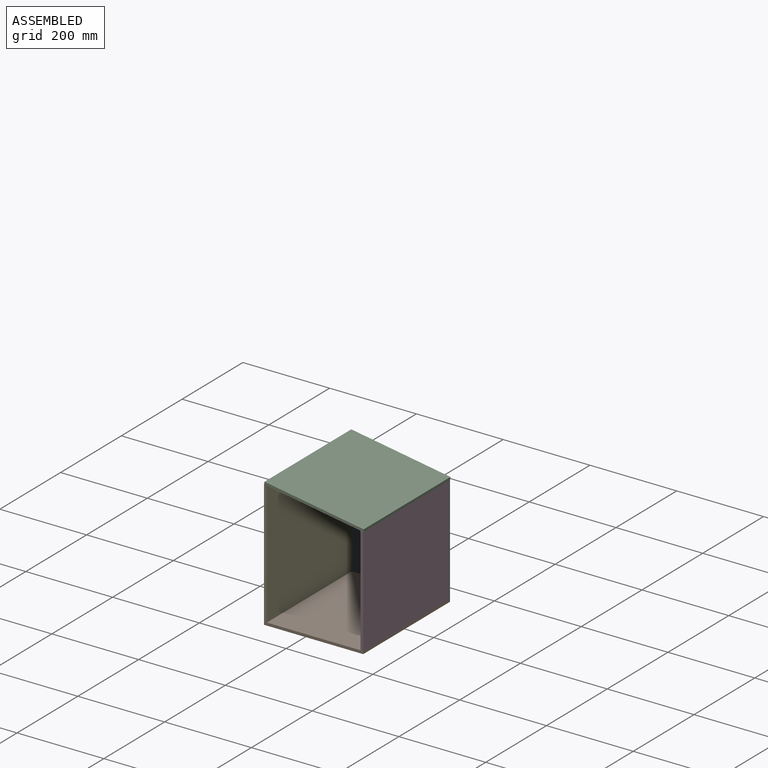
[diagram: assembled view]
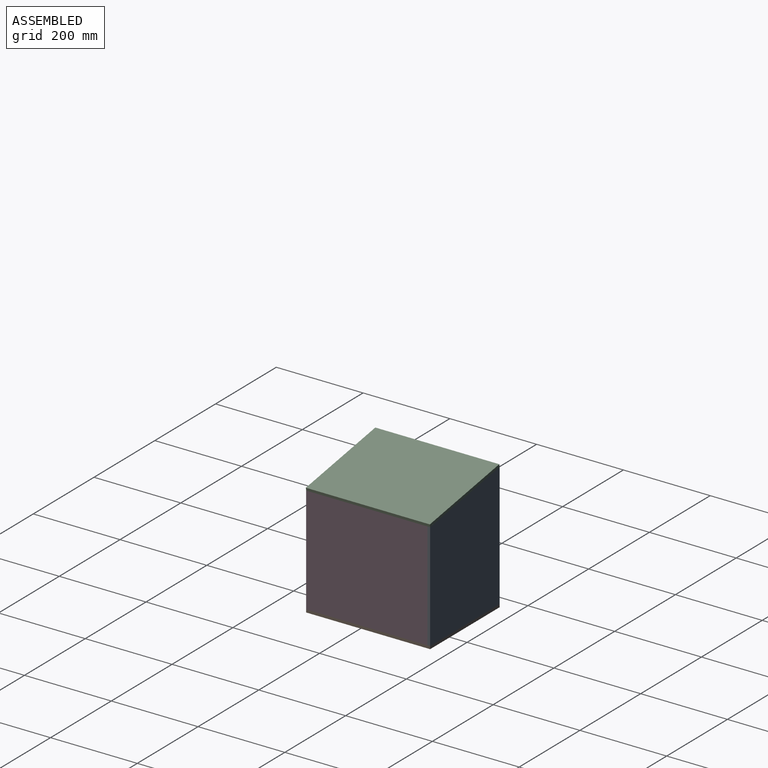
[diagram: assembled view, second angle]
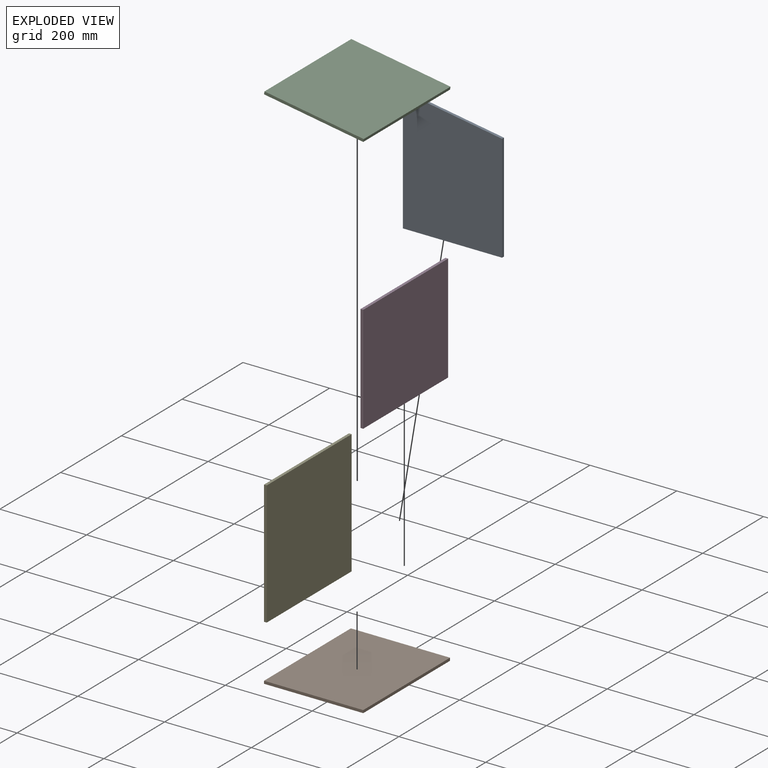
[diagram: exploded view]
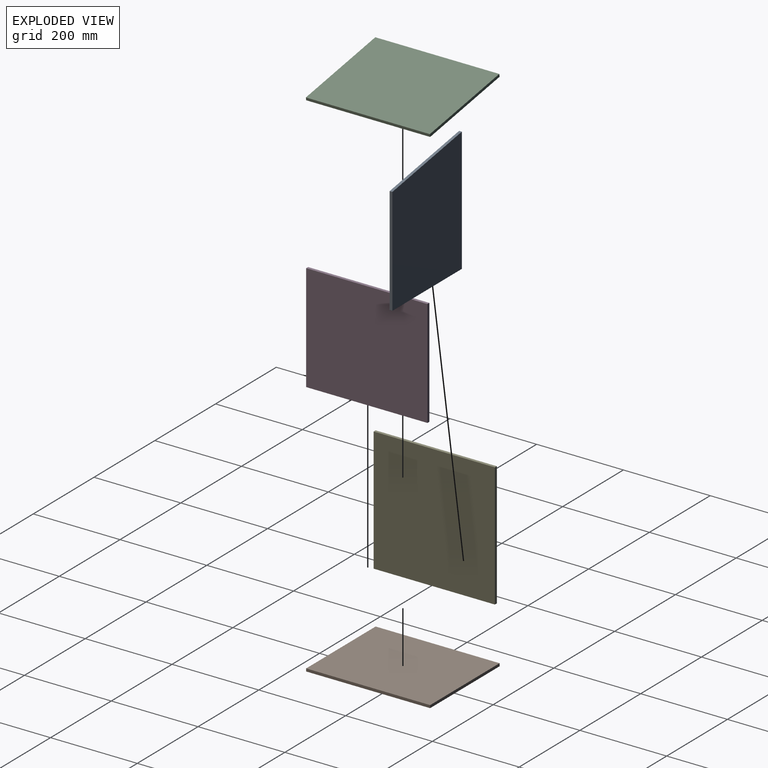
[diagram: exploded view, second angle]
ASSEMBLY  parts=5 mates=4
PART A: 6 faces, bbox 228.6x6.4x285.8 mm
  f0: plane 247.65x6.35mm, normal (-1,0,0), area 1572.6mm2, adj f1,f3,f4,f5
  f1: plane 228.6x6.35mm, normal (0,0,-1), area 1451.6mm2, adj f0,f2,f4,f5
  f2: plane 285.75x6.35mm, normal (1,0,0), area 1814.5mm2, adj f1,f3,f4,f5
  f3: plane 228.6x38.1mm, normal (-0.16,0,0.99), area 1471.6mm2, adj f0,f2,f4,f5
  f4: plane 285.75x228.6mm, normal (0,-1,0), area 60967.6mm2, adj f0,f1,f2,f3
  f5: plane 285.75x228.6mm, normal (0,1,0), area 60967.6mm2, adj f0,f1,f2,f3
PART B: 6 faces, bbox 228.6x6.4x285.8 mm
  f0: plane 228.6x6.35mm, normal (0,0,1), area 1451.6mm2, adj f1,f3,f4,f5
  f1: plane 285.75x6.35mm, normal (-1,0,0), area 1814.5mm2, adj f0,f2,f4,f5
  f2: plane 228.6x6.35mm, normal (0,0,-1), area 1451.6mm2, adj f1,f3,f4,f5
  f3: plane 285.75x6.35mm, normal (1,0,0), area 1814.5mm2, adj f0,f2,f4,f5
  f4: plane 285.75x228.6mm, normal (0,-1,0), area 65322.5mm2, adj f0,f1,f2,f3
  f5: plane 285.75x228.6mm, normal (0,1,0), area 65322.5mm2, adj f0,f1,f2,f3
PART C: 6 faces, bbox 231.8x6.4x285.8 mm
  f0: plane 231.78x6.35mm, normal (0,0,1), area 1471.8mm2, adj f1,f3,f4,f5
  f1: plane 285.75x6.35mm, normal (-1,0,0), area 1814.5mm2, adj f0,f2,f4,f5
  f2: plane 231.78x6.35mm, normal (0,0,-1), area 1471.8mm2, adj f1,f3,f4,f5
  f3: plane 285.75x6.35mm, normal (1,0,0), area 1814.5mm2, adj f0,f2,f4,f5
  f4: plane 285.75x231.78mm, normal (0,-1,0), area 66229.7mm2, adj f0,f1,f2,f3
  f5: plane 285.75x231.78mm, normal (0,1,0), area 66229.7mm2, adj f0,f1,f2,f3
PART D: 6 faces, bbox 247.7x6.4x279.4 mm
  f0: plane 247.65x6.35mm, normal (0,0,1), area 1572.6mm2, adj f1,f3,f4,f5
  f1: plane 279.4x6.35mm, normal (-1,0,0), area 1774.2mm2, adj f0,f2,f4,f5
  f2: plane 247.65x6.35mm, normal (0,0,-1), area 1572.6mm2, adj f1,f3,f4,f5
  f3: plane 279.4x6.35mm, normal (1,0,0), area 1774.2mm2, adj f0,f2,f4,f5
  f4: plane 279.4x247.65mm, normal (0,-1,0), area 69193.4mm2, adj f0,f1,f2,f3
  f5: plane 279.4x247.65mm, normal (0,1,0), area 69193.4mm2, adj f0,f1,f2,f3
PART E: 6 faces, bbox 279.4x6.4x285.8 mm
  f0: plane 279.4x6.35mm, normal (0,0,1), area 1774.2mm2, adj f1,f3,f4,f5
  f1: plane 285.75x6.35mm, normal (-1,0,0), area 1814.5mm2, adj f0,f2,f4,f5
  f2: plane 279.4x6.35mm, normal (0,0,-1), area 1774.2mm2, adj f1,f3,f4,f5
  f3: plane 285.75x6.35mm, normal (1,0,0), area 1814.5mm2, adj f0,f2,f4,f5
  f4: plane 285.75x279.4mm, normal (0,-1,0), area 79838.5mm2, adj f0,f1,f2,f3
  f5: plane 285.75x279.4mm, normal (0,1,0), area 79838.5mm2, adj f0,f1,f2,f3
PLACE A rot(axis=(0,0,1),180deg) t=(2615.29,314.05,63.11)mm
PLACE B rot(axis=(1,0,0),90deg) t=(-761.54,251.78,-5.5)mm
PLACE C rot(axis=(-0.06,-0.71,-0.71),173.3deg) t=(2188.7,103.26,-33.95)mm
PLACE D rot(axis=(-0.58,-0.58,-0.58),120deg) t=(493.51,103.26,-1353.43)mm
PLACE E rot(axis=(0,0,-1),90deg) t=(271.26,929.26,63.11)mm
MATE fastened D.f1 <-> B.f5  axis (0,0,-1) through (493.51,34.65,-5.5)mm
MATE fastened A.f1 <-> B.f5  axis (0,0,-1) through (379.21,320.4,-5.5)mm
MATE fastened C.f4 <-> A.f3  axis (-0.16,0,-0.99) through (379.21,320.4,261.2)mm
MATE fastened E.f2 <-> B.f5  axis (0,0,-1) through (264.91,34.65,-5.5)mm
